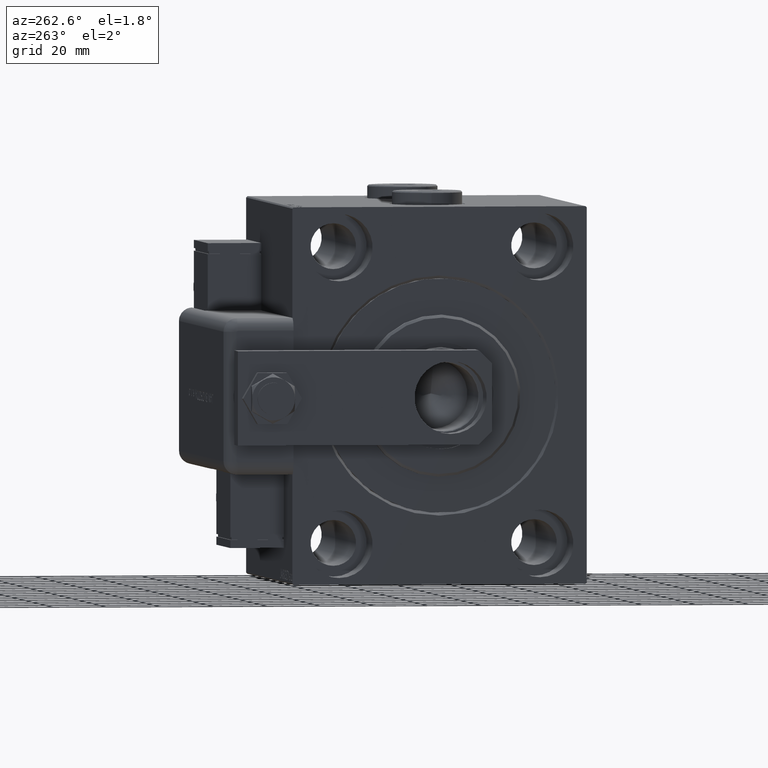
[diagram: clean part render]
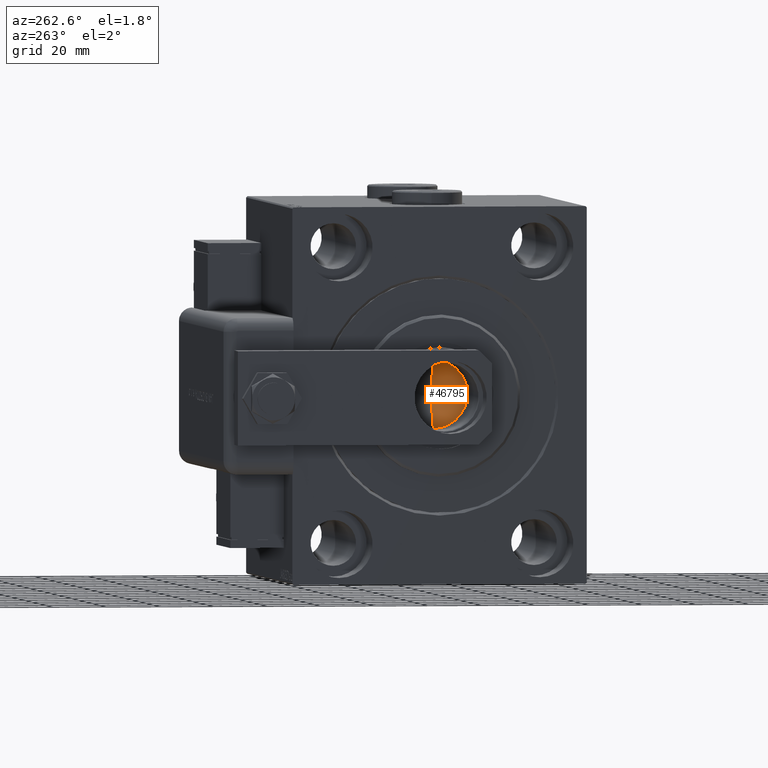
[diagram: same view with one face highlighted and labeled with its STEP entity id]
A machine part, auxiliary view. The second image highlights one B-rep face of the part: STEP entity #46795.
In plain terms, the highlighted conical surface has half-angle 59 deg.
Its self-contained STEP definition (entity closure, byte-faithful):
#974 = CONICAL_SURFACE ( 'NONE', #53254, 12.74999999999999467, 1.029744258676653645 ) ;
#2154 = EDGE_CURVE ( 'NONE', #25165, #33460, #34524, .T. ) ;
#4640 = DIRECTION ( 'NONE',  ( 1.000000000000000000, 0.000000000000000000, 0.000000000000000000 ) ) ;
#5728 = DIRECTION ( 'NONE',  ( -0.8571673007021118895, 1.049727191138618079E-16, 0.5150380749100549327 ) ) ;
#6517 = CARTESIAN_POINT ( 'NONE',  ( 12.74999999999999467, 0.000000000000000000, 94.00000000000000000 ) ) ;
#6647 = LINE ( 'NONE', #20240, #24633 ) ;
#7260 = DIRECTION ( 'NONE',  ( 1.000000000000000000, 0.000000000000000000, 0.000000000000000000 ) ) ;
#10129 = CARTESIAN_POINT ( 'NONE',  ( 0.000000000000000000, 0.000000000000000000, 94.00000000000000000 ) ) ;
#13313 = CARTESIAN_POINT ( 'NONE',  ( 0.000000000000000000, 0.000000000000000000, 94.00000000000000000 ) ) ;
#17625 = DIRECTION ( 'NONE',  ( -0.000000000000000000, -0.000000000000000000, 1.000000000000000000 ) ) ;
#20240 = CARTESIAN_POINT ( 'NONE',  ( -12.74999999999999467, 1.561424668912874519E-15, 94.00000000000000000 ) ) ;
#21866 = CARTESIAN_POINT ( 'NONE',  ( -1.026246296720136938E-14, 0.000000000000000000, 86.33902710739860709 ) ) ;
#21946 = CARTESIAN_POINT ( 'NONE',  ( -12.74999999999999467, 1.561424668912874519E-15, 94.00000000000000000 ) ) ;
#24633 = VECTOR ( 'NONE', #5728, 1000.000000000000000 ) ;
#25165 = VERTEX_POINT ( 'NONE', #21946 ) ;
#27183 = VECTOR ( 'NONE', #32788, 1000.000000000000000 ) ;
#31640 = EDGE_CURVE ( 'NONE', #34469, #33460, #31891, .T. ) ;
#31891 = LINE ( 'NONE', #46413, #27183 ) ;
#32788 = DIRECTION ( 'NONE',  ( 0.8571673007021118895, 0.000000000000000000, 0.5150380749100549327 ) ) ;
#33460 = VERTEX_POINT ( 'NONE', #6517 ) ;
#34469 = VERTEX_POINT ( 'NONE', #21866 ) ;
#34524 = CIRCLE ( 'NONE', #55261, 12.74999999999999467 ) ;
#35375 = DIRECTION ( 'NONE',  ( -0.000000000000000000, -0.000000000000000000, 1.000000000000000000 ) ) ;
#46413 = CARTESIAN_POINT ( 'NONE',  ( 12.74999999999999467, 0.000000000000000000, 94.00000000000000000 ) ) ;
#46795 = ADVANCED_FACE ( 'NONE', ( #51308 ), #974, .F. ) ;
#48233 = ORIENTED_EDGE ( 'NONE', *, *, #53547, .T. ) ;
#50122 = EDGE_LOOP ( 'NONE', ( #53088, #48233, #58175 ) ) ;
#51308 = FACE_OUTER_BOUND ( 'NONE', #50122, .T. ) ;
#53088 = ORIENTED_EDGE ( 'NONE', *, *, #31640, .F. ) ;
#53254 = AXIS2_PLACEMENT_3D ( 'NONE', #13313, #17625, #4640 ) ;
#53547 = EDGE_CURVE ( 'NONE', #34469, #25165, #6647, .T. ) ;
#55261 = AXIS2_PLACEMENT_3D ( 'NONE', #10129, #35375, #7260 ) ;
#58175 = ORIENTED_EDGE ( 'NONE', *, *, #2154, .T. ) ;